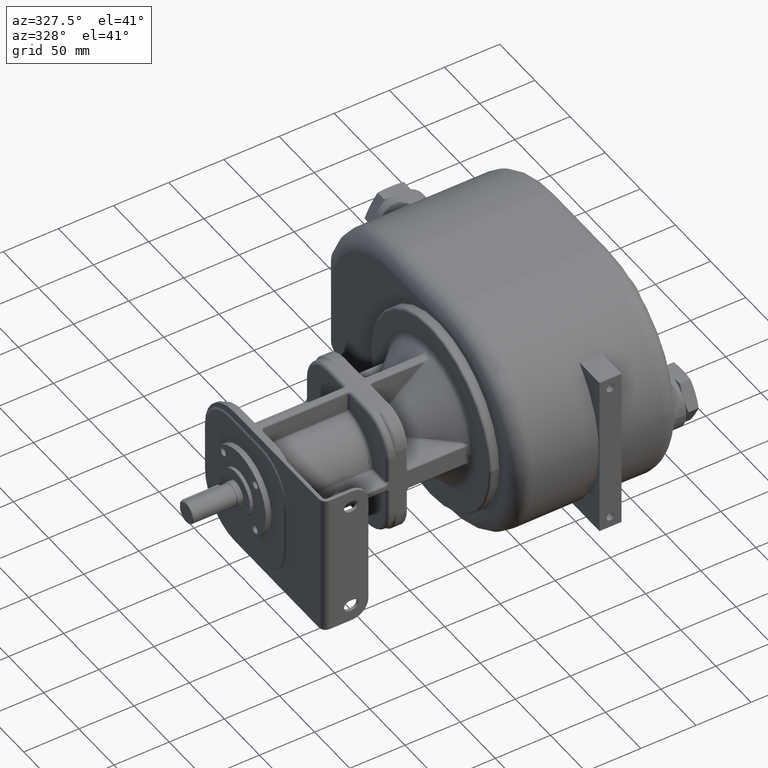
[diagram: clean part render]
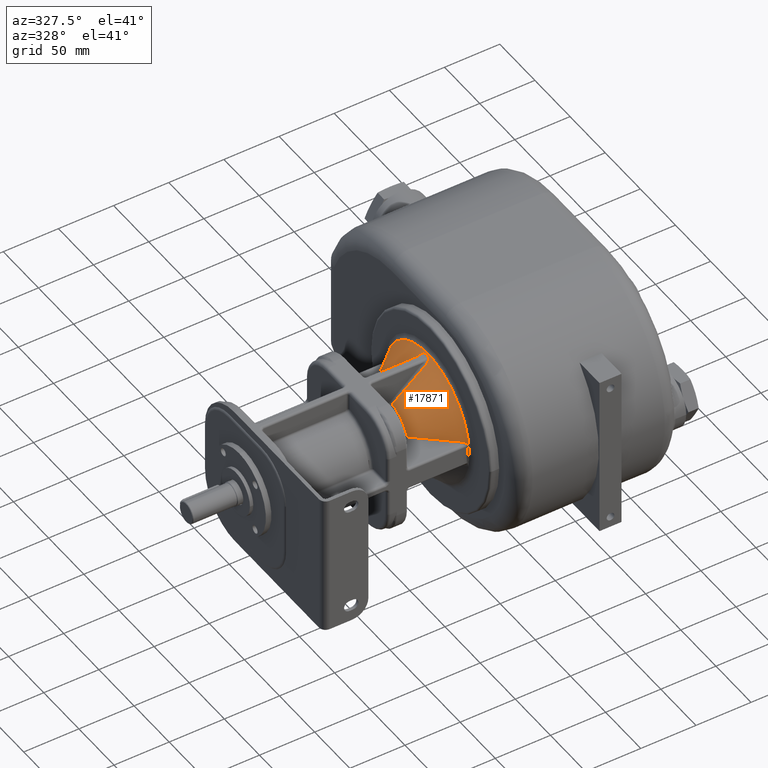
[diagram: same view with one face highlighted and labeled with its STEP entity id]
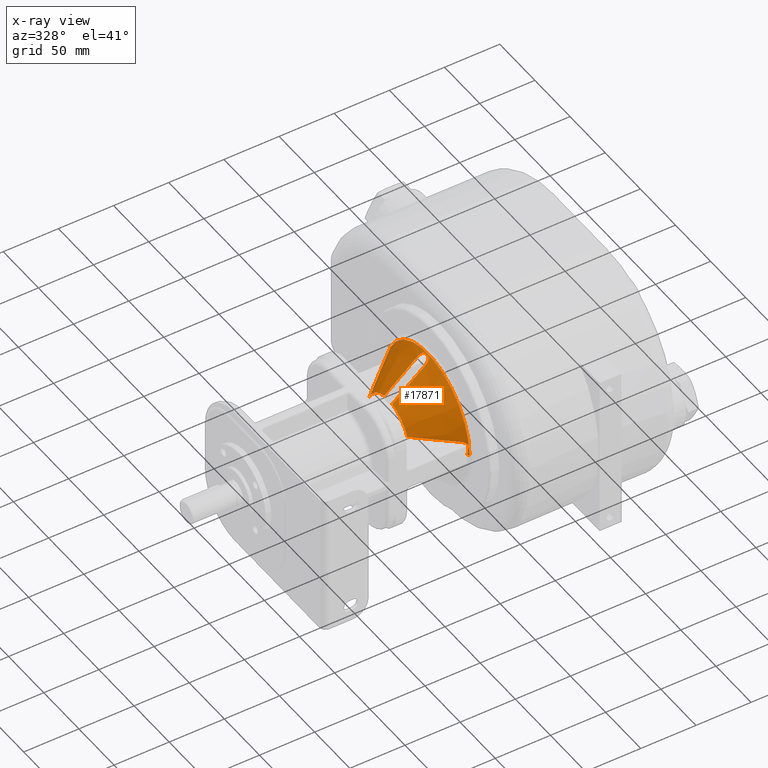
[diagram: x-ray of the same camera — body ghosted, the highlighted face saturated]
A machine part, auxiliary view. The second image highlights one B-rep face of the part: STEP entity #17871.
The next image is the same camera in x-ray: the body ghosted, the highlighted face saturated — about 0% of this face is hidden behind the body in this view.
In plain terms, the highlighted conical surface has half-angle 40 deg.
Its self-contained STEP definition (entity closure, byte-faithful):
#3236=DIRECTION('',(7.660442860451E-1,-6.427877968799E-1,1.564773499040E-12));
#3237=VECTOR('',#3236,1.473006843776E0);
#3238=CARTESIAN_POINT('',(-9.677166281786E1,5.153208916198E1,
-1.088777094602E-12));
#3239=LINE('',#3238,#3237);
#3245=DIRECTION('',(7.660442845769E-1,6.427877986296E-1,-1.466896731564E-12));
#3246=VECTOR('',#3245,1.473006843776E0);
#3247=CARTESIAN_POINT('',(-9.677166281570E1,1.684679108354E2,
9.414014882271E-13));
#3248=LINE('',#3247,#3246);
#4317=CARTESIAN_POINT('',(-1.011525790623E2,1.041635523890E2,5.448014924730E1));
#4318=CARTESIAN_POINT('',(-1.010503619075E2,1.041633044354E2,5.456638448760E1));
#4319=CARTESIAN_POINT('',(-1.008474468929E2,1.041679595896E2,5.473811861864E1));
#4320=CARTESIAN_POINT('',(-1.005457572746E2,1.041919560398E2,5.499523714694E1));
#4321=CARTESIAN_POINT('',(-1.002524974483E2,1.042313025494E2,5.524680173740E1));
#4322=CARTESIAN_POINT('',(-9.996798268299E1,1.042855430094E2,5.549244896647E1));
#4323=CARTESIAN_POINT('',(-9.969389538739E1,1.043536961833E2,5.573060026938E1));
#4324=CARTESIAN_POINT('',(-9.943143623988E1,1.044347114589E2,5.596007545293E1));
#4325=CARTESIAN_POINT('',(-9.918190973124E1,1.045272738038E2,5.617958221892E1));
#4326=CARTESIAN_POINT('',(-9.894595348487E1,1.046301132843E2,5.638840078372E1));
#4327=CARTESIAN_POINT('',(-9.872389115433E1,1.047420122076E2,5.658608780217E1));
#4328=CARTESIAN_POINT('',(-9.851604942110E1,1.048616391345E2,5.677219534477E1));
#4329=CARTESIAN_POINT('',(-9.832227787448E1,1.049878545855E2,5.694670516898E1));
#4330=CARTESIAN_POINT('',(-9.814221806924E1,1.051197281307E2,5.710980143859E1));
#4331=CARTESIAN_POINT('',(-9.797544173833E1,1.052563360087E2,5.726173557197E1));
#4332=CARTESIAN_POINT('',(-9.782160626996E1,1.053968405451E2,5.740270208110E1));
#4333=CARTESIAN_POINT('',(-9.768031913592E1,1.055403559591E2,5.753294167015E1));
#4334=CARTESIAN_POINT('',(-9.755116030497E1,1.056861414484E2,5.765273765955E1));
#4335=CARTESIAN_POINT('',(-9.743360818575E1,1.058334882314E2,5.776246837255E1));
#4336=CARTESIAN_POINT('',(-9.732713066607E1,1.059819355785E2,5.786254502971E1));
#4337=CARTESIAN_POINT('',(-9.723107421365E1,1.061310281417E2,5.795348548801E1));
#4338=CARTESIAN_POINT('',(-9.714495860704E1,1.062805019905E2,5.803567822885E1));
#4339=CARTESIAN_POINT('',(-9.706818955750E1,1.064300378864E2,5.810960627980E1));
#4340=CARTESIAN_POINT('',(-9.700032089354E1,1.065794274361E2,5.817563756537E1));
#4341=CARTESIAN_POINT('',(-9.694088869855E1,1.067286360129E2,5.823416617033E1));
#4342=CARTESIAN_POINT('',(-9.688944571313E1,1.068775756351E2,5.828556890209E1));
#4343=CARTESIAN_POINT('',(-9.684559626569E1,1.070260997041E2,5.833017689321E1));
#4344=CARTESIAN_POINT('',(-9.680904587614E1,1.071743625957E2,5.836825182850E1));
#4345=CARTESIAN_POINT('',(-9.677961523160E1,1.073223410821E2,5.839994801596E1));
#4346=CARTESIAN_POINT('',(-9.675695200537E1,1.074696771029E2,5.842555084554E1));
#4347=CARTESIAN_POINT('',(-9.674090064520E1,1.076162618704E2,5.844519392301E1));
#4348=CARTESIAN_POINT('',(-9.673143674826E1,1.077619549487E2,5.845890035637E1));
#4349=CARTESIAN_POINT('',(-9.672810640766E1,1.079068348832E2,5.846706239567E1));
#4350=CARTESIAN_POINT('',(-9.673005988983E1,1.080021339249E2,5.846871561995E1));
#4351=CARTESIAN_POINT('',(-9.673199447089E1,1.080495182831E2,5.846867256815E1));
#4353=CARTESIAN_POINT('',(-9.673196354700E1,1.080505336382E2,5.846873195668E1));
#4354=CARTESIAN_POINT('',(-9.674522161893E1,1.083758105063E2,5.846844952429E1));
#4355=CARTESIAN_POINT('',(-9.676499175381E1,1.090244974809E2,5.846807161977E1));
#4356=CARTESIAN_POINT('',(-9.677496266465E1,1.099994474894E2,5.846785464685E1));
#4357=CARTESIAN_POINT('',(-9.676502346342E1,1.109741864737E2,5.846807078889E1));
#4358=CARTESIAN_POINT('',(-9.674519961738E1,1.116238928987E2,5.846847624912E1));
#4359=CARTESIAN_POINT('',(-9.673195443199E1,1.119490798380E2,5.846875788602E1));
#4361=CARTESIAN_POINT('',(-9.673195944491E1,1.119493218373E2,5.846874065617E1));
#4362=CARTESIAN_POINT('',(-9.673000399090E1,1.119970119172E2,5.846878868859E1));
#4363=CARTESIAN_POINT('',(-9.672808587382E1,1.120928194823E2,5.846709383759E1));
#4364=CARTESIAN_POINT('',(-9.673141183736E1,1.122378396462E2,5.845892890631E1));
#4365=CARTESIAN_POINT('',(-9.674096368187E1,1.123839608242E2,5.844513242636E1));
#4366=CARTESIAN_POINT('',(-9.675697963215E1,1.125309703980E2,5.842549987997E1));
#4367=CARTESIAN_POINT('',(-9.677976977364E1,1.126786188573E2,5.839977440150E1));
#4368=CARTESIAN_POINT('',(-9.680934073317E1,1.128267681452E2,5.836794947406E1));
#4369=CARTESIAN_POINT('',(-9.684589142597E1,1.129750668390E2,5.832986934274E1));
#4370=CARTESIAN_POINT('',(-9.688974103335E1,1.131233939566E2,5.828526857388E1));
#4371=CARTESIAN_POINT('',(-9.694119325194E1,1.132721208217E2,5.823386759009E1));
#4372=CARTESIAN_POINT('',(-9.700065792940E1,1.134213338093E2,5.817530961563E1));
#4373=CARTESIAN_POINT('',(-9.706862739957E1,1.135709261631E2,5.810917919603E1));
#4374=CARTESIAN_POINT('',(-9.714561601836E1,1.137207485499E2,5.803504559477E1));
#4375=CARTESIAN_POINT('',(-9.723206468715E1,1.138705481026E2,5.795254759657E1));
#4376=CARTESIAN_POINT('',(-9.732833017887E1,1.140199414553E2,5.786140593300E1));
#4377=CARTESIAN_POINT('',(-9.743507987025E1,1.141685058299E2,5.776108644621E1));
#4378=CARTESIAN_POINT('',(-9.755283440753E1,1.143158103143E2,5.765118282869E1));
#4379=CARTESIAN_POINT('',(-9.768192987672E1,1.144614079710E2,5.753144902477E1));
#4380=CARTESIAN_POINT('',(-9.782304476820E1,1.146045580516E2,5.740137861712E1));
#4381=CARTESIAN_POINT('',(-9.797665137444E1,1.147446797037E2,5.726063264675E1));
#4382=CARTESIAN_POINT('',(-9.814318893700E1,1.148810431895E2,5.710891771008E1));
#4383=CARTESIAN_POINT('',(-9.832316751858E1,1.150127435814E2,5.694590304265E1));
#4384=CARTESIAN_POINT('',(-9.851696345036E1,1.151389296105E2,5.677137380037E1));
#4385=CARTESIAN_POINT('',(-9.872502086776E1,1.152586070261E2,5.658507830270E1));
#4386=CARTESIAN_POINT('',(-9.894740779589E1,1.153705678886E2,5.638711014595E1));
#4387=CARTESIAN_POINT('',(-9.918368397281E1,1.154734511203E2,5.617801580770E1));
#4388=CARTESIAN_POINT('',(-9.943344701385E1,1.155659726341E2,5.595831180040E1));
#4389=CARTESIAN_POINT('',(-9.969593804658E1,1.156468661326E2,5.572882044654E1));
#4390=CARTESIAN_POINT('',(-9.996991392739E1,1.157148765884E2,5.549077658184E1));
#4391=CARTESIAN_POINT('',(-1.002541894121E2,1.157689663235E2,5.524534619237E1));
#4392=CARTESIAN_POINT('',(-1.005472175932E2,1.158082008282E2,5.499398820886E1));
#4393=CARTESIAN_POINT('',(-1.008483598485E2,1.158320370833E2,5.473734906195E1));
#4394=CARTESIAN_POINT('',(-1.010516163850E2,1.158368182204E2,5.456531168586E1));
#4395=CARTESIAN_POINT('',(-1.011541106478E2,1.158365684610E2,5.447884379349E1));
#4397=CARTESIAN_POINT('',(-1.011558412668E2,1.158367106530E2,5.447736770952E1));
#4398=CARTESIAN_POINT('',(-1.031269201020E2,1.158319179407E2,5.281448411401E1));
#4399=CARTESIAN_POINT('',(-1.068482648115E2,1.158221220840E2,4.967342952374E1));
#4400=CARTESIAN_POINT('',(-1.117289099315E2,1.158066826455E2,4.554948093447E1));
#4401=CARTESIAN_POINT('',(-1.160584994564E2,1.157906310605E2,4.188678476731E1));
#4402=CARTESIAN_POINT('',(-1.198975443242E2,1.157739812823E2,3.863473476398E1));
#4403=CARTESIAN_POINT('',(-1.233414280856E2,1.157566230229E2,3.571306268800E1));
#4404=CARTESIAN_POINT('',(-1.263732869170E2,1.157389618426E2,3.313667637803E1));
#4405=CARTESIAN_POINT('',(-1.290509636521E2,1.157211023602E2,3.085723299023E1));
#4406=CARTESIAN_POINT('',(-1.306560188677E2,1.157089206369E2,2.948825796448E1));
#4407=CARTESIAN_POINT('',(-1.314090022625E2,1.157028517119E2,2.884539967563E1));
#4409=CARTESIAN_POINT('',(-1.314090013254E2,1.1E2,0.E0));
#4410=DIRECTION('',(-1.E0,0.E0,0.E0));
#4411=DIRECTION('',(0.E0,1.939499120428E-1,9.810114329704E-1));
#4412=AXIS2_PLACEMENT_3D('',#4409,#4410,#4411);
#4414=CARTESIAN_POINT('',(-1.314090022122E2,1.371014672390E2,1.140570340056E1));
#4415=CARTESIAN_POINT('',(-1.309562835014E2,1.375105428094E2,1.141300104874E1));
#4416=CARTESIAN_POINT('',(-1.300105770343E2,1.383627264899E2,1.142770199923E1));
#4417=CARTESIAN_POINT('',(-1.284852127927E2,1.397297761632E2,1.144966536159E1));
#4418=CARTESIAN_POINT('',(-1.268078570701E2,1.412252185912E2,1.147195972603E1));
#4419=CARTESIAN_POINT('',(-1.249605432118E2,1.428638700969E2,1.149451367957E1));
#4420=CARTESIAN_POINT('',(-1.229159660145E2,1.446687204036E2,1.151733904444E1));
#4421=CARTESIAN_POINT('',(-1.206346350048E2,1.466731707500E2,1.154049665219E1));
#4422=CARTESIAN_POINT('',(-1.180747672088E2,1.489123055787E2,1.156398512992E1));
#4423=CARTESIAN_POINT('',(-1.151639820914E2,1.514474057240E2,1.158793897369E1));
#4424=CARTESIAN_POINT('',(-1.119135743265E2,1.542666324907E2,1.161173573645E1));
#4425=CARTESIAN_POINT('',(-1.083532368133E2,1.573430008397E2,1.163483468090E1));
#4426=CARTESIAN_POINT('',(-1.044439249058E2,1.607093856460E2,1.165721365926E1));
#4427=CARTESIAN_POINT('',(-1.015426223147E2,1.631999119189E2,1.167187535395E1));
#4428=CARTESIAN_POINT('',(-1.000240620246E2,1.645015328198E2,1.167901791997E1));
#4430=CARTESIAN_POINT('',(-1.000249463640E2,1.645007588567E2,1.167908818217E1));
#4431=CARTESIAN_POINT('',(-9.992653658524E1,1.645851096254E2,1.167955136697E1));
#4432=CARTESIAN_POINT('',(-9.973287571430E1,1.647522213364E2,1.167517646572E1));
#4433=CARTESIAN_POINT('',(-9.945155579572E1,1.649980636446E2,1.165397181409E1));
#4434=CARTESIAN_POINT('',(-9.917982605738E1,1.652385951497E2,1.161848686817E1));
#4435=CARTESIAN_POINT('',(-9.891884149364E1,1.654725773028E2,1.156963404968E1));
#4436=CARTESIAN_POINT('',(-9.866944247940E1,1.656990443578E2,1.150831666540E1));
#4437=CARTESIAN_POINT('',(-9.843242143034E1,1.659170482117E2,1.143556279593E1));
#4438=CARTESIAN_POINT('',(-9.820853486302E1,1.661256462812E2,1.135255128748E1));
#4439=CARTESIAN_POINT('',(-9.799811770499E1,1.663242649790E2,1.126046225519E1));
#4440=CARTESIAN_POINT('',(-9.780102263539E1,1.665127950031E2,1.116025878623E1));
#4441=CARTESIAN_POINT('',(-9.761706763289E1,1.666911487787E2,1.105298177281E1));
#4442=CARTESIAN_POINT('',(-9.744607260980E1,1.668592764186E2,1.093951301145E1));
#4443=CARTESIAN_POINT('',(-9.728772781016E1,1.670172243055E2,1.082085155810E1));
#4444=CARTESIAN_POINT('',(-9.714174778514E1,1.671650679168E2,1.069777873889E1));
#4445=CARTESIAN_POINT('',(-9.700768363852E1,1.673030035826E2,1.057121637120E1));
#4446=CARTESIAN_POINT('',(-9.688511757415E1,1.674312783975E2,1.044170865984E1));
#4447=CARTESIAN_POINT('',(-9.677336136578E1,1.675503548109E2,1.030991008945E1));
#4448=CARTESIAN_POINT('',(-9.667192111776E1,1.676605839733E2,1.017619974951E1));
#4449=CARTESIAN_POINT('',(-9.658030516145E1,1.677623274059E2,1.004090150772E1));
#4450=CARTESIAN_POINT('',(-9.649787152649E1,1.678560711489E2,9.904373303308E0));
#4451=CARTESIAN_POINT('',(-9.642417332248E1,1.679421627212E2,9.766825510802E0));
#4452=CARTESIAN_POINT('',(-9.635878736444E1,1.680209540713E2,9.628326519722E0));
#4453=CARTESIAN_POINT('',(-9.630136681505E1,1.680927063406E2,9.489101269061E0));
#4454=CARTESIAN_POINT('',(-9.625154787255E1,1.681576855756E2,9.349444273018E0));
#4455=CARTESIAN_POINT('',(-9.620902084594E1,1.682161226563E2,9.209597062804E0));
#4456=CARTESIAN_POINT('',(-9.617354083201E1,1.682682396429E2,9.069515789661E0));
#4457=CARTESIAN_POINT('',(-9.614481715349E1,1.683143034515E2,8.929108648054E0));
#4458=CARTESIAN_POINT('',(-9.612249129344E1,1.683546259231E2,8.788358833441E0));
#4459=CARTESIAN_POINT('',(-9.610649238456E1,1.683893085163E2,8.647015107091E0));
#4460=CARTESIAN_POINT('',(-9.609680669988E1,1.684183387519E2,8.505255353739E0));
#4461=CARTESIAN_POINT('',(-9.609314528812E1,1.684419262538E2,8.363348897005E0));
#4462=CARTESIAN_POINT('',(-9.609552196998E1,1.684600410835E2,8.221459819104E0));
#4463=CARTESIAN_POINT('',(-9.610391373761E1,1.684726849898E2,8.079755327488E0));
#4464=CARTESIAN_POINT('',(-9.611804964097E1,1.684800780099E2,7.938365331328E0));
#4465=CARTESIAN_POINT('',(-9.613128089132E1,1.684815162017E2,7.844387831303E0));
#4466=CARTESIAN_POINT('',(-9.613886471450E1,1.684813530565E2,7.797473792593E0));
#4468=CARTESIAN_POINT('',(-9.613885998084E1,1.684813516962E2,7.797499843618E0));
#4469=CARTESIAN_POINT('',(-9.619137805876E1,1.684802461852E2,7.472353970644E0));
#4470=CARTESIAN_POINT('',(-9.629005907803E1,1.684781657425E2,6.821560495611E0));
#4471=CARTESIAN_POINT('',(-9.641891807008E1,1.684754323883E2,5.842620901847E0));
#4472=CARTESIAN_POINT('',(-9.652810858381E1,1.684731178133E2,4.862946713525E0));
#4473=CARTESIAN_POINT('',(-9.661742045108E1,1.684712090903E2,3.883714679529E0));
#4474=CARTESIAN_POINT('',(-9.668669146009E1,1.684697297062E2,2.906305133180E0));
#4475=CARTESIAN_POINT('',(-9.673590549889E1,1.684686904539E2,1.932119676140E0));
#4476=CARTESIAN_POINT('',(-9.676522015473E1,1.684680610055E2,
9.623613773964E-1));
#4477=CARTESIAN_POINT('',(-9.677166005338E1,1.684679117568E2,
3.202201401948E-1));
#4478=CARTESIAN_POINT('',(-9.677166281570E1,1.684679108354E2,
9.414014882271E-13));
#4480=CARTESIAN_POINT('',(-9.564327434188E1,1.1E2,0.E0));
#4481=DIRECTION('',(-1.E0,0.E0,0.E0));
#4482=DIRECTION('',(0.E0,-1.E0,0.E0));
#4483=AXIS2_PLACEMENT_3D('',#4480,#4481,#4482);
#4485=CARTESIAN_POINT('',(-9.677166304923E1,5.153208888624E1,
1.926887447282E-14));
#4486=CARTESIAN_POINT('',(-9.677166067704E1,5.153208809475E1,
3.182654004518E-1));
#4487=CARTESIAN_POINT('',(-9.676530163896E1,5.153194328276E1,
9.571310130479E-1));
#4488=CARTESIAN_POINT('',(-9.673622914382E1,5.153132313095E1,1.923950021318E0));
#4489=CARTESIAN_POINT('',(-9.668725874335E1,5.153028336196E1,2.896932316614E0));
#4490=CARTESIAN_POINT('',(-9.661815458947E1,5.152880884470E1,3.874754350982E0));
#4491=CARTESIAN_POINT('',(-9.652883994256E1,5.152687602367E1,4.855668715210E0));
#4492=CARTESIAN_POINT('',(-9.641952074247E1,5.152466762353E1,5.838633053375E0));
#4493=CARTESIAN_POINT('',(-9.628991590825E1,5.152150751871E1,6.820142613278E0));
#4494=CARTESIAN_POINT('',(-9.619145677705E1,5.152044777504E1,7.477245287075E0));
#4495=CARTESIAN_POINT('',(-9.613831744688E1,5.151934327055E1,7.806165997169E0));
#4497=CARTESIAN_POINT('',(-9.613831744688E1,5.151934327055E1,7.806165997169E0));
#4498=CARTESIAN_POINT('',(-9.613085756270E1,5.151918455133E1,7.852288830686E0));
#4499=CARTESIAN_POINT('',(-9.611675851424E1,5.151982579506E1,7.945720232572E0));
#4500=CARTESIAN_POINT('',(-9.610288864827E1,5.152825560297E1,8.092871672600E0));
#4501=CARTESIAN_POINT('',(-9.609489346083E1,5.154186000868E1,8.238770282541E0));
#4502=CARTESIAN_POINT('',(-9.609320791894E1,5.156127426695E1,8.385342003598E0));
#4503=CARTESIAN_POINT('',(-9.609807009531E1,5.158658908395E1,8.531727842853E0));
#4504=CARTESIAN_POINT('',(-9.610944608745E1,5.161776637563E1,8.677838740243E0));
#4505=CARTESIAN_POINT('',(-9.612733418635E1,5.165476138836E1,8.823354172042E0));
#4506=CARTESIAN_POINT('',(-9.615202553513E1,5.169778286784E1,8.968012111749E0));
#4507=CARTESIAN_POINT('',(-9.618361133416E1,5.174696503524E1,9.112171466303E0));
#4508=CARTESIAN_POINT('',(-9.622228159351E1,5.180250916604E1,9.256055806290E0));
#4509=CARTESIAN_POINT('',(-9.626846159406E1,5.186477724423E1,9.399629157828E0));
#4510=CARTESIAN_POINT('',(-9.632253679482E1,5.193410378632E1,9.542892132729E0));
#4511=CARTESIAN_POINT('',(-9.638487627754E1,5.201080912380E1,9.685837266435E0));
#4512=CARTESIAN_POINT('',(-9.645585865717E1,5.209518467212E1,9.828233843590E0));
#4513=CARTESIAN_POINT('',(-9.653598526443E1,5.218761351374E1,9.969786963344E0));
#4514=CARTESIAN_POINT('',(-9.662584858988E1,5.228856170199E1,1.011024336627E1));
#4515=CARTESIAN_POINT('',(-9.672587260887E1,5.239833447133E1,1.024926072889E1));
#4516=CARTESIAN_POINT('',(-9.683648122463E1,5.251721338263E1,1.038638083961E1));
#4517=CARTESIAN_POINT('',(-9.695838702751E1,5.264569454687E1,1.052099493914E1));
#4518=CARTESIAN_POINT('',(-9.709201734388E1,5.278404737161E1,1.065261146013E1));
#4519=CARTESIAN_POINT('',(-9.723784619987E1,5.293253739083E1,1.078052909488E1));
#4520=CARTESIAN_POINT('',(-9.739647023577E1,5.309151430580E1,1.090397356249E1));
#4521=CARTESIAN_POINT('',(-9.756834350857E1,5.326120873450E1,1.102221925791E1));
#4522=CARTESIAN_POINT('',(-9.775400555180E1,5.344187468857E1,1.113431965781E1));
#4523=CARTESIAN_POINT('',(-9.795367184017E1,5.363346387518E1,1.123924353780E1));
#4524=CARTESIAN_POINT('',(-9.816740563544E1,5.383576044857E1,1.133581993490E1));
#4525=CARTESIAN_POINT('',(-9.839525403519E1,5.404853319689E1,1.142291819245E1));
#4526=CARTESIAN_POINT('',(-9.863686672071E1,5.427118472575E1,1.149932231022E1));
#4527=CARTESIAN_POINT('',(-9.889144629345E1,5.450271296109E1,1.156375345383E1));
#4528=CARTESIAN_POINT('',(-9.915820419267E1,5.474215953826E1,1.161513904370E1));
#4529=CARTESIAN_POINT('',(-9.943609672501E1,5.498835753200E1,1.165247192970E1));
#4530=CARTESIAN_POINT('',(-9.972455724661E1,5.524059818992E1,1.167497446076E1));
#4531=CARTESIAN_POINT('',(-9.992205957651E1,5.541100402528E1,1.167934573603E1));
#4532=CARTESIAN_POINT('',(-1.000222736161E2,5.549690176870E1,1.167887463460E1));
#4534=CARTESIAN_POINT('',(-1.000231710630E2,5.549768744178E1,1.167894671930E1));
#4535=CARTESIAN_POINT('',(-1.015486094973E2,5.680520185584E1,1.167177244238E1));
#4536=CARTESIAN_POINT('',(-1.044578157124E2,5.930255947777E1,1.165717508667E1));
#4537=CARTESIAN_POINT('',(-1.083685017176E2,6.267016166240E1,1.163473289089E1));
#4538=CARTESIAN_POINT('',(-1.119313186262E2,6.574872419983E1,1.161161705385E1));
#4539=CARTESIAN_POINT('',(-1.151827361830E2,6.856889371227E1,1.158779257985E1));
#4540=CARTESIAN_POINT('',(-1.180888452527E2,7.109998828715E1,1.156386117075E1));
#4541=CARTESIAN_POINT('',(-1.206427359711E2,7.333393557599E1,1.154041720017E1));
#4542=CARTESIAN_POINT('',(-1.229210928412E2,7.533579858621E1,1.151728351335E1));
#4543=CARTESIAN_POINT('',(-1.249622461088E2,7.713763922716E1,1.149449321323E1));
#4544=CARTESIAN_POINT('',(-1.268088846195E2,7.877569736313E1,1.147194615993E1));
#4545=CARTESIAN_POINT('',(-1.284834481139E2,8.026865061937E1,1.144968892274E1));
#4546=CARTESIAN_POINT('',(-1.300079999286E2,8.163495663339E1,1.142774041452E1));
#4547=CARTESIAN_POINT('',(-1.309551379178E2,8.248842198821E1,1.141301951729E1));
#4548=CARTESIAN_POINT('',(-1.314090022150E2,8.289853275790E1,1.140570340185E1));
#4550=CARTESIAN_POINT('',(-1.314090013254E2,1.1E2,0.E0));
#4551=DIRECTION('',(-1.E0,0.E0,0.E0));
#4552=DIRECTION('',(0.E0,-9.217015387176E-1,3.878998240856E-1));
#4553=AXIS2_PLACEMENT_3D('',#4550,#4551,#4552);
#4555=CARTESIAN_POINT('',(-1.314090013254E2,1.042971485047E2,2.884539857981E1));
#4556=CARTESIAN_POINT('',(-1.306575950530E2,1.042910922973E2,2.948691035796E1));
#4557=CARTESIAN_POINT('',(-1.290550389354E2,1.042789266737E2,3.085375953943E1));
#4558=CARTESIAN_POINT('',(-1.263798955124E2,1.042610798138E2,3.313105585711E1));
#4559=CARTESIAN_POINT('',(-1.233470462928E2,1.042434066701E2,3.570829229786E1));
#4560=CARTESIAN_POINT('',(-1.199062069815E2,1.042260618833E2,3.862739101377E1));
#4561=CARTESIAN_POINT('',(-1.160663904794E2,1.042093908640E2,4.188010511775E1));
#4562=CARTESIAN_POINT('',(-1.117354499923E2,1.041933735433E2,4.554395504101E1));
#4563=CARTESIAN_POINT('',(-1.068557701797E2,1.041777729242E2,4.966707934325E1));
#4564=CARTESIAN_POINT('',(-1.031269193882E2,1.041683528031E2,5.281451471775E1));
#4565=CARTESIAN_POINT('',(-1.011525790623E2,1.041635523890E2,5.448014924730E1));
#4633=CARTESIAN_POINT('',(-1.314090022150E2,8.289853275790E1,1.140570340185E1));
#8467=CARTESIAN_POINT('',(-1.314090022625E2,1.157028517119E2,2.884539967563E1));
#12081=CARTESIAN_POINT('',(-9.564327434188E1,5.058525833808E1,
1.966416026876E-14));
#12082=CARTESIAN_POINT('',(-9.564327434188E1,1.694147416619E2,
-1.399749272917E-14));
#12083=VERTEX_POINT('',#12081);
#12084=VERTEX_POINT('',#12082);
#12165=VERTEX_POINT('',#4414);
#12166=VERTEX_POINT('',#4428);
#12202=VERTEX_POINT('',#8467);
#12204=VERTEX_POINT('',#4397);
#12205=VERTEX_POINT('',#4555);
#12206=VERTEX_POINT('',#4565);
#12242=VERTEX_POINT('',#4633);
#12244=VERTEX_POINT('',#4534);
#12336=CARTESIAN_POINT('',(-9.613886696999E1,5.151864386340E1,
7.797506446462E0));
#12337=VERTEX_POINT('',#12336);
#12338=CARTESIAN_POINT('',(-9.673194706858E1,1.080510408778E2,
5.846876158802E1));
#12339=VERTEX_POINT('',#12338);
#12340=CARTESIAN_POINT('',(-9.673195204375E1,1.119489556137E2,
5.846876508827E1));
#12341=VERTEX_POINT('',#12340);
#12344=CARTESIAN_POINT('',(-9.613885353887E1,1.684813509135E2,
7.797513404932E0));
#12345=VERTEX_POINT('',#12344);
#12347=VERTEX_POINT('',#4478);
#12348=VERTEX_POINT('',#4485);
#17836=CARTESIAN_POINT('',(-1.135261378336E2,1.1E2,0.E0));
#17837=DIRECTION('',(1.E0,0.E0,0.E0));
#17838=DIRECTION('',(0.E0,-1.E0,0.E0));
#17839=AXIS2_PLACEMENT_3D('',#17836,#17837,#17838);
#17840=CONICAL_SURFACE('',#17839,4.440923750161E1,4.E1);
#17842=ORIENTED_EDGE('',*,*,#17841,.T.);
#17844=ORIENTED_EDGE('',*,*,#17843,.T.);
#17846=ORIENTED_EDGE('',*,*,#17845,.T.);
#17848=ORIENTED_EDGE('',*,*,#17847,.T.);
#17850=ORIENTED_EDGE('',*,*,#17849,.T.);
#17852=ORIENTED_EDGE('',*,*,#17851,.T.);
#17853=ORIENTED_EDGE('',*,*,#17826,.T.);
#17855=ORIENTED_EDGE('',*,*,#17854,.T.);
#17856=ORIENTED_EDGE('',*,*,#16780,.T.);
#17857=ORIENTED_EDGE('',*,*,#16736,.F.);
#17858=ORIENTED_EDGE('',*,*,#16777,.F.);
#17860=ORIENTED_EDGE('',*,*,#17859,.T.);
#17862=ORIENTED_EDGE('',*,*,#17861,.T.);
#17864=ORIENTED_EDGE('',*,*,#17863,.T.);
#17866=ORIENTED_EDGE('',*,*,#17865,.T.);
#17868=ORIENTED_EDGE('',*,*,#17867,.T.);
#17869=EDGE_LOOP('',(#17842,#17844,#17846,#17848,#17850,#17852,#17853,#17855,
#17856,#17857,#17858,#17860,#17862,#17864,#17866,#17868));
#17870=FACE_OUTER_BOUND('',#17869,.F.);
#17871=ADVANCED_FACE('',(#17870),#17840,.T.);
#4352=B_SPLINE_CURVE_WITH_KNOTS('',3,(#4317,#4318,#4319,#4320,#4321,#4322,#4323,
#4324,#4325,#4326,#4327,#4328,#4329,#4330,#4331,#4332,#4333,#4334,#4335,#4336,
#4337,#4338,#4339,#4340,#4341,#4342,#4343,#4344,#4345,#4346,#4347,#4348,#4349,
#4350,#4351),.UNSPECIFIED.,.F.,.F.,(4,1,1,1,1,1,1,1,1,1,1,1,1,1,1,1,1,1,1,1,1,1,
1,1,1,1,1,1,1,1,1,1,4),(0.E0,3.125E-2,6.25E-2,9.375E-2,1.25E-1,1.5625E-1,
1.875E-1,2.1875E-1,2.5E-1,2.8125E-1,3.125E-1,3.4375E-1,3.75E-1,4.0625E-1,
4.375E-1,4.6875E-1,5.E-1,5.3125E-1,5.625E-1,5.9375E-1,6.25E-1,6.5625E-1,
6.875E-1,7.1875E-1,7.5E-1,7.8125E-1,8.125E-1,8.4375E-1,8.75E-1,9.0625E-1,
9.375E-1,9.6875E-1,1.E0),.UNSPECIFIED.);
#4360=B_SPLINE_CURVE_WITH_KNOTS('',3,(#4353,#4354,#4355,#4356,#4357,#4358,
#4359),.UNSPECIFIED.,.F.,.F.,(4,1,1,1,4),(0.E0,2.5E-1,5.E-1,7.5E-1,1.E0),
.UNSPECIFIED.);
#4396=B_SPLINE_CURVE_WITH_KNOTS('',3,(#4361,#4362,#4363,#4364,#4365,#4366,#4367,
#4368,#4369,#4370,#4371,#4372,#4373,#4374,#4375,#4376,#4377,#4378,#4379,#4380,
#4381,#4382,#4383,#4384,#4385,#4386,#4387,#4388,#4389,#4390,#4391,#4392,#4393,
#4394,#4395),.UNSPECIFIED.,.F.,.F.,(4,1,1,1,1,1,1,1,1,1,1,1,1,1,1,1,1,1,1,1,1,1,
1,1,1,1,1,1,1,1,1,1,4),(0.E0,3.125E-2,6.25E-2,9.375E-2,1.25E-1,1.5625E-1,
1.875E-1,2.1875E-1,2.5E-1,2.8125E-1,3.125E-1,3.4375E-1,3.75E-1,4.0625E-1,
4.375E-1,4.6875E-1,5.E-1,5.3125E-1,5.625E-1,5.9375E-1,6.25E-1,6.5625E-1,
6.875E-1,7.1875E-1,7.5E-1,7.8125E-1,8.125E-1,8.4375E-1,8.75E-1,9.0625E-1,
9.375E-1,9.6875E-1,1.E0),.UNSPECIFIED.);
#4408=B_SPLINE_CURVE_WITH_KNOTS('',3,(#4397,#4398,#4399,#4400,#4401,#4402,#4403,
#4404,#4405,#4406,#4407),.UNSPECIFIED.,.F.,.F.,(4,1,1,1,1,1,1,1,4),(0.E0,
1.25E-1,2.5E-1,3.75E-1,5.E-1,6.25E-1,7.5E-1,8.75E-1,1.E0),.UNSPECIFIED.);
#4413=CIRCLE('',#4412,2.940373334129E1);
#4429=B_SPLINE_CURVE_WITH_KNOTS('',3,(#4414,#4415,#4416,#4417,#4418,#4419,#4420,
#4421,#4422,#4423,#4424,#4425,#4426,#4427,#4428),.UNSPECIFIED.,.F.,.F.,(4,1,1,1,
1,1,1,1,1,1,1,1,4),(0.E0,8.333333333333E-2,1.666666666667E-1,2.5E-1,
3.333333333333E-1,4.166666666667E-1,5.E-1,5.833333333333E-1,6.666666666667E-1,
7.5E-1,8.333333333333E-1,9.166666666667E-1,1.E0),.UNSPECIFIED.);
#4467=B_SPLINE_CURVE_WITH_KNOTS('',3,(#4430,#4431,#4432,#4433,#4434,#4435,#4436,
#4437,#4438,#4439,#4440,#4441,#4442,#4443,#4444,#4445,#4446,#4447,#4448,#4449,
#4450,#4451,#4452,#4453,#4454,#4455,#4456,#4457,#4458,#4459,#4460,#4461,#4462,
#4463,#4464,#4465,#4466),.UNSPECIFIED.,.F.,.F.,(4,1,1,1,1,1,1,1,1,1,1,1,1,1,1,1,
1,1,1,1,1,1,1,1,1,1,1,1,1,1,1,1,1,1,4),(0.E0,2.941176470588E-2,
5.882352941176E-2,8.823529411765E-2,1.176470588235E-1,1.470588235294E-1,
1.764705882353E-1,2.058823529412E-1,2.352941176471E-1,2.647058823529E-1,
2.941176470588E-1,3.235294117647E-1,3.529411764706E-1,3.823529411765E-1,
4.117647058824E-1,4.411764705882E-1,4.705882352941E-1,5.E-1,5.294117647059E-1,
5.588235294118E-1,5.882352941176E-1,6.176470588235E-1,6.470588235294E-1,
6.764705882353E-1,7.058823529412E-1,7.352941176471E-1,7.647058823529E-1,
7.941176470588E-1,8.235294117647E-1,8.529411764706E-1,8.823529411765E-1,
9.117647058824E-1,9.411764705882E-1,9.705882352941E-1,1.E0),.UNSPECIFIED.);
#4479=B_SPLINE_CURVE_WITH_KNOTS('',3,(#4468,#4469,#4470,#4471,#4472,#4473,#4474,
#4475,#4476,#4477,#4478),.UNSPECIFIED.,.F.,.F.,(4,1,1,1,1,1,1,1,4),(0.E0,
1.25E-1,2.5E-1,3.75E-1,5.E-1,6.25E-1,7.5E-1,8.75E-1,1.E0),.UNSPECIFIED.);
#4484=CIRCLE('',#4483,5.941474166192E1);
#4496=B_SPLINE_CURVE_WITH_KNOTS('',3,(#4485,#4486,#4487,#4488,#4489,#4490,#4491,
#4492,#4493,#4494,#4495),.UNSPECIFIED.,.F.,.F.,(4,1,1,1,1,1,1,1,4),(0.E0,
1.25E-1,2.5E-1,3.75E-1,5.E-1,6.25E-1,7.5E-1,8.75E-1,1.E0),.UNSPECIFIED.);
#4533=B_SPLINE_CURVE_WITH_KNOTS('',3,(#4497,#4498,#4499,#4500,#4501,#4502,#4503,
#4504,#4505,#4506,#4507,#4508,#4509,#4510,#4511,#4512,#4513,#4514,#4515,#4516,
#4517,#4518,#4519,#4520,#4521,#4522,#4523,#4524,#4525,#4526,#4527,#4528,#4529,
#4530,#4531,#4532),.UNSPECIFIED.,.F.,.F.,(4,1,1,1,1,1,1,1,1,1,1,1,1,1,1,1,1,1,1,
1,1,1,1,1,1,1,1,1,1,1,1,1,1,4),(0.E0,3.030303030303E-2,6.060606060606E-2,
9.090909090909E-2,1.212121212121E-1,1.515151515152E-1,1.818181818182E-1,
2.121212121212E-1,2.424242424242E-1,2.727272727273E-1,3.030303030303E-1,
3.333333333333E-1,3.636363636364E-1,3.939393939394E-1,4.242424242424E-1,
4.545454545455E-1,4.848484848485E-1,5.151515151515E-1,5.454545454545E-1,
5.757575757576E-1,6.060606060606E-1,6.363636363636E-1,6.666666666667E-1,
6.969696969697E-1,7.272727272727E-1,7.575757575758E-1,7.878787878788E-1,
8.181818181818E-1,8.484848484848E-1,8.787878787879E-1,9.090909090909E-1,
9.393939393939E-1,9.696969696970E-1,1.E0),.UNSPECIFIED.);
#4549=B_SPLINE_CURVE_WITH_KNOTS('',3,(#4534,#4535,#4536,#4537,#4538,#4539,#4540,
#4541,#4542,#4543,#4544,#4545,#4546,#4547,#4548),.UNSPECIFIED.,.F.,.F.,(4,1,1,1,
1,1,1,1,1,1,1,1,4),(0.E0,8.333333333333E-2,1.666666666667E-1,2.5E-1,
3.333333333333E-1,4.166666666667E-1,5.E-1,5.833333333333E-1,6.666666666667E-1,
7.5E-1,8.333333333333E-1,9.166666666667E-1,1.E0),.UNSPECIFIED.);
#4554=CIRCLE('',#4553,2.940373334129E1);
#4566=B_SPLINE_CURVE_WITH_KNOTS('',3,(#4555,#4556,#4557,#4558,#4559,#4560,#4561,
#4562,#4563,#4564,#4565),.UNSPECIFIED.,.F.,.F.,(4,1,1,1,1,1,1,1,4),(0.E0,
1.25E-1,2.5E-1,3.75E-1,5.E-1,6.25E-1,7.5E-1,8.75E-1,1.E0),.UNSPECIFIED.);
#16736=EDGE_CURVE('',#12083,#12084,#4484,.T.);
#16777=EDGE_CURVE('',#12348,#12083,#3239,.T.);
#16780=EDGE_CURVE('',#12347,#12084,#3248,.T.);
#17826=EDGE_CURVE('',#12166,#12345,#4467,.T.);
#17841=EDGE_CURVE('',#12206,#12339,#4352,.T.);
#17843=EDGE_CURVE('',#12339,#12341,#4360,.T.);
#17845=EDGE_CURVE('',#12341,#12204,#4396,.T.);
#17847=EDGE_CURVE('',#12204,#12202,#4408,.T.);
#17849=EDGE_CURVE('',#12202,#12165,#4413,.T.);
#17851=EDGE_CURVE('',#12165,#12166,#4429,.T.);
#17854=EDGE_CURVE('',#12345,#12347,#4479,.T.);
#17859=EDGE_CURVE('',#12348,#12337,#4496,.T.);
#17861=EDGE_CURVE('',#12337,#12244,#4533,.T.);
#17863=EDGE_CURVE('',#12244,#12242,#4549,.T.);
#17865=EDGE_CURVE('',#12242,#12205,#4554,.T.);
#17867=EDGE_CURVE('',#12205,#12206,#4566,.T.);